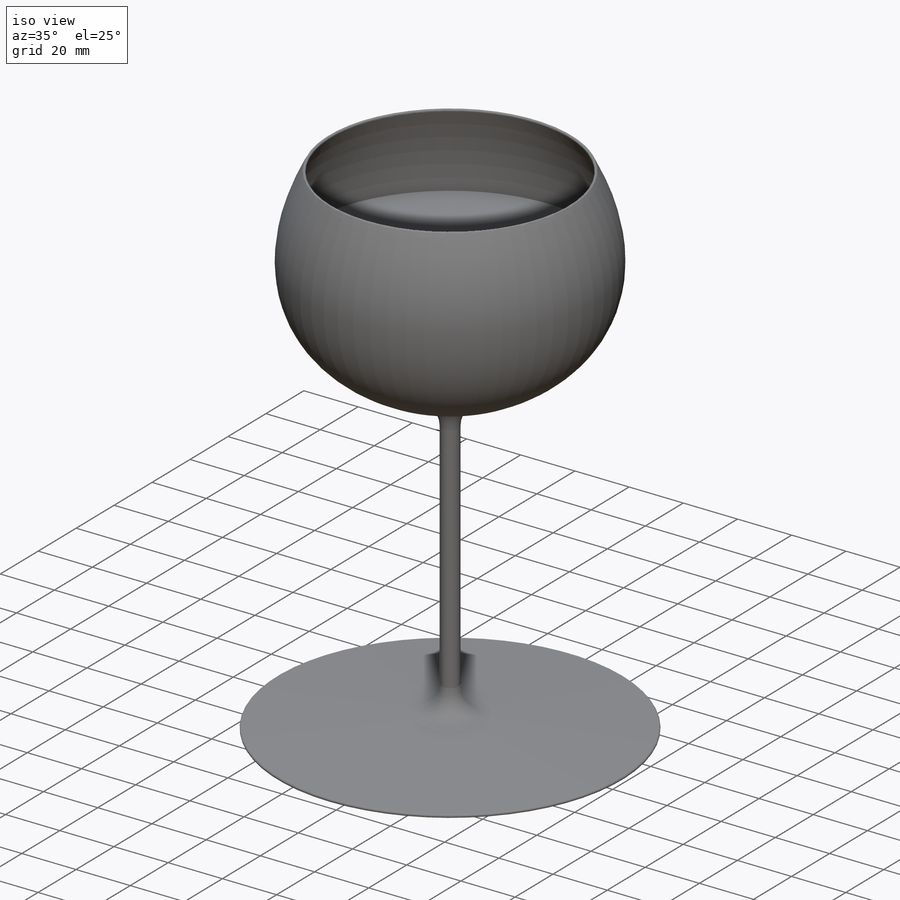
[diagram: iso view]
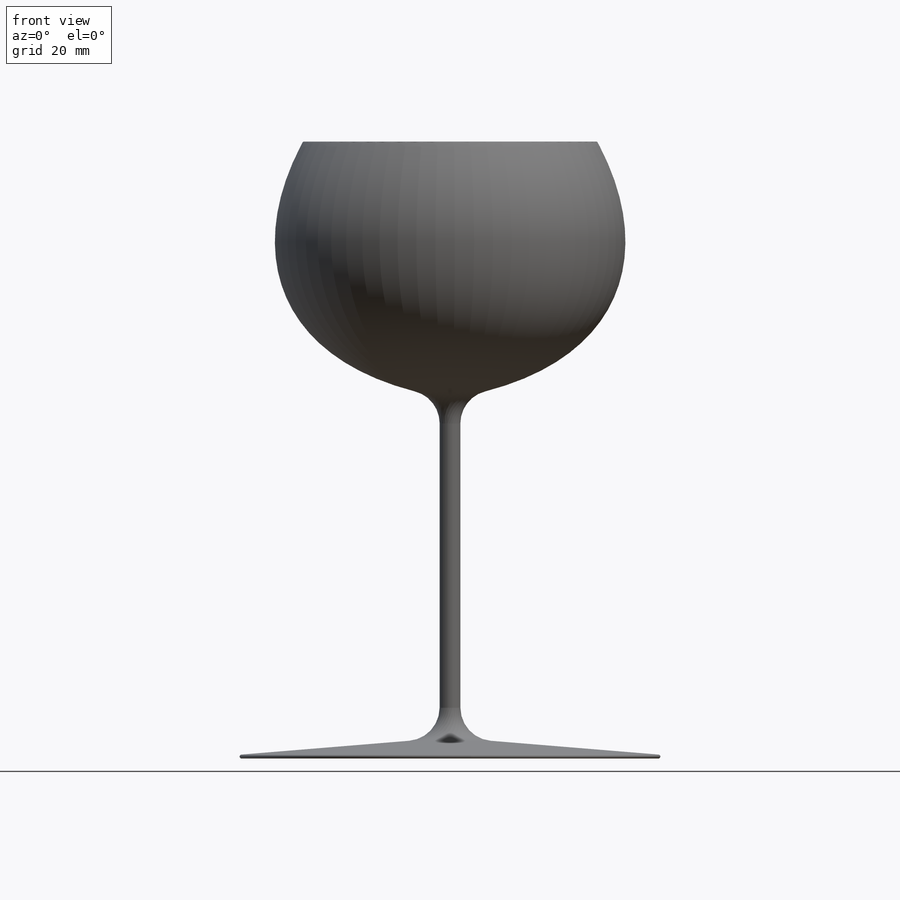
[diagram: front view]
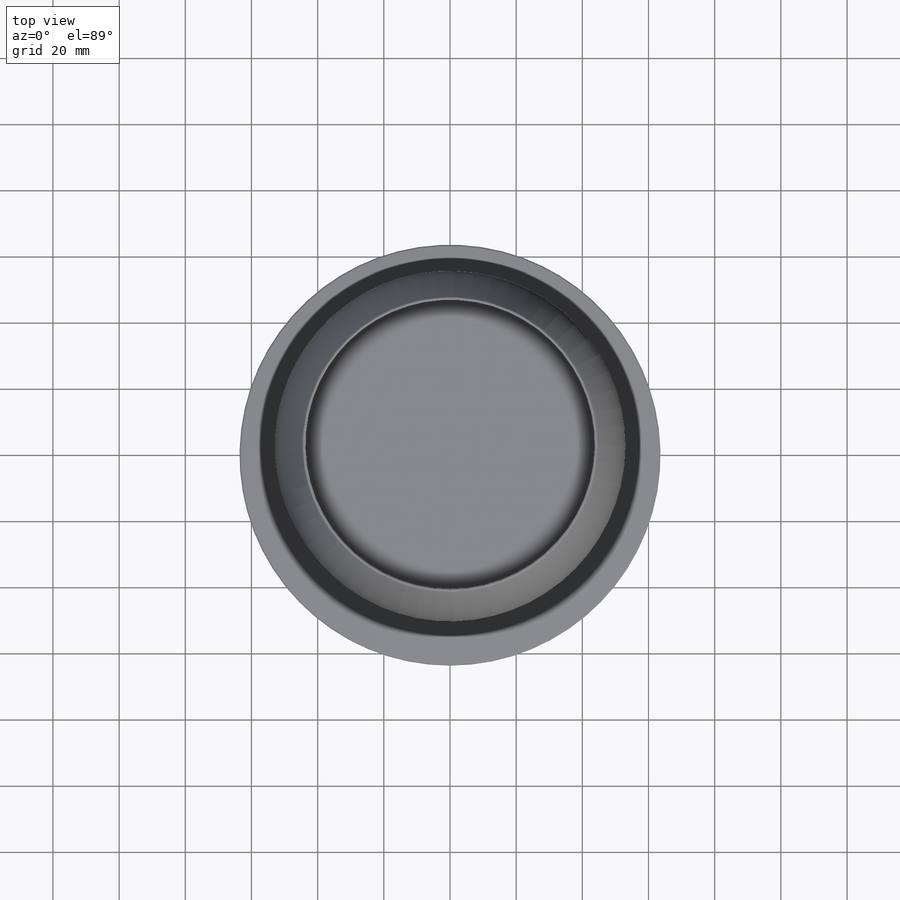
[diagram: top view]
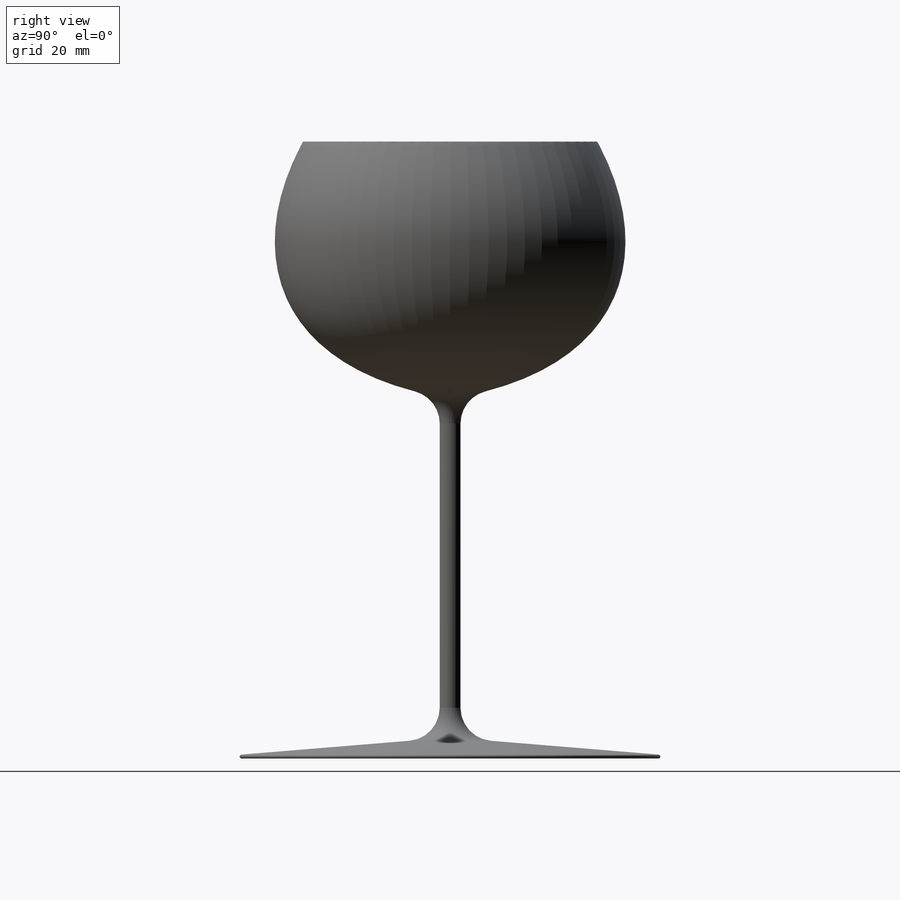
[diagram: right view]
SOLIDWORKS PART (.sldprt)
format: sldprt  version: not decoded by parser v0  size: 326,656 bytes
history: native  units: mm
features: sketch x6, plane x4, revolve x3, fillet x2, extrude x2, material x1 (+9 scaffold rows collapsed)
feature tree (27):
  scaffold x9  (default folders/planes/origin — collapsed)
  material  "Material <nicht festgelegt>"
  plane  "Ebene vorne"
  plane  "Ebene oben"
  plane  "Ebene rechts"
  sketch  "Skizze1"  dims[D1=1.0mm]
  revolve  "Rotation1"  Angle=360deg
  sketch  "Skizze2"  dims[D1=1.2mm]
  revolve  "Rotation2"  Angle=360deg
  fillet  "Verrundung1"  Radius=10mm
  fillet  "Verrundung2"  Radius=10mm
  sketch  "Skizze7"
  plane  "Ebene3"
  sketch  "Skizze18"
  revolve  "Rotation5"  Angle=360deg
  sketch  "Skizze17"
  extrude  "Aufsatz-Linear austragen7"  [1 undecoded]
  sketch  "Skizze12"
  extrude  "Aufsatz-Linear austragen2"  Depth=50mm
decode coverage: 8 of 13 modeling features carry decoded parameters
note: 1 parameter value undecoded
note: suppression state not decoded; provenance and decode notes live in map.json
